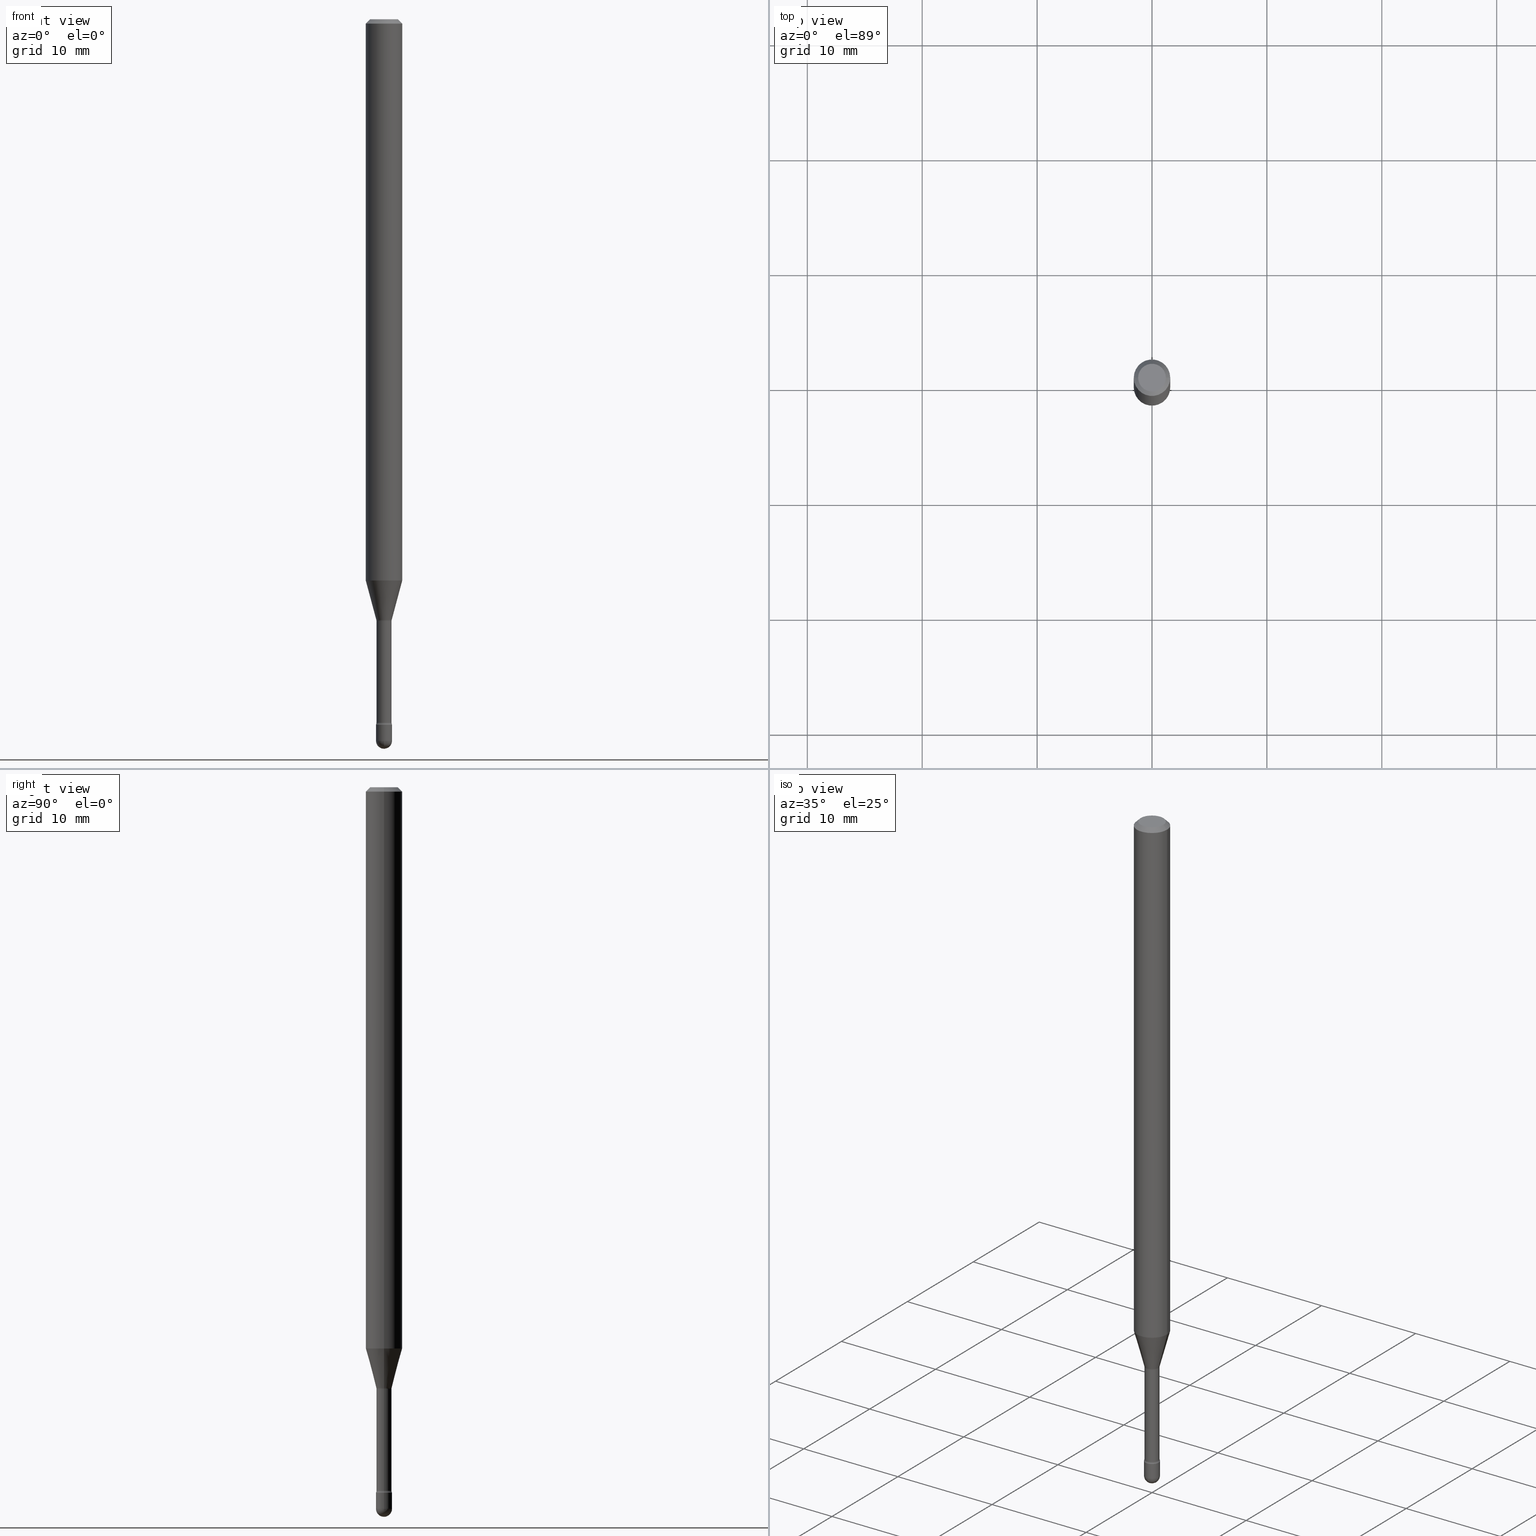
[diagram: canonical four-view strip — front | top / right | iso, engineering-drawing reading convention]
A machine part, canonical four-view strip (front | top / right | iso — engineering-drawing reading convention). The complete STEP part file that produces these views, byte-faithful:
ISO-10303-21;
HEADER;
FILE_DESCRIPTION (( 'STEP AP203' ),
    '1' );
FILE_NAME ('09489.STEP',
    '2024-04-09T23:47:00',
    ( '' ),
    ( '' ),
    'SwSTEP 2.0',
    'SolidWorks 2023',
    '' );
FILE_SCHEMA (( 'CONFIG_CONTROL_DESIGN' ));
ENDSEC;

DATA;
#1 = CALENDAR_DATE ( 2024, 9, 4 ) ;
#2 = DIRECTION ( 'NONE',  ( -2.445468806185136597E-29, 3.491481338843145583E-15, 1.000000000000000000 ) ) ;
#3 = CARTESIAN_POINT ( 'NONE',  ( 5.033001013364303975E-29, -7.185791563603268197E-15, -2.058092501787273321 ) ) ;
#4 = VERTEX_POINT ( 'NONE', #127 ) ;
#5 = ORIENTED_EDGE ( 'NONE', *, *, #21, .T. ) ;
#6 = PERSON_AND_ORGANIZATION ( #26, #140 ) ;
#7 = CARTESIAN_POINT ( 'NONE',  ( -1.169113584055446105E-44, 1.669184350826100908E-30, 4.780733988912460139E-16 ) ) ;
#8 = ORIENTED_EDGE ( 'NONE', *, *, #451, .F. ) ;
#9 = PERSON_AND_ORGANIZATION_ROLE ( 'design_supplier' ) ;
#10 = DIRECTION ( 'NONE',  ( 1.000000000000000000, -6.982962677686279332E-15, 0.000000000000000000 ) ) ;
#11 = EDGE_LOOP ( 'NONE', ( #555, #518, #396, #521, #220 ) ) ;
#12 = CIRCLE ( 'NONE', #111, 0.02585000000000006043 ) ;
#13 = APPROVAL_PERSON_ORGANIZATION ( #280, #286, #142 ) ;
#14 = EDGE_CURVE ( 'NONE', #376, #343, #514, .T. ) ;
#15 = DATE_TIME_ROLE ( 'creation_date' ) ;
#16 = APPLICATION_CONTEXT ( 'configuration controlled 3d designs of mechanical parts and assemblies' ) ;
#17 = APPROVAL ( #445, 'UNSPECIFIED' ) ;
#18 = DIRECTION ( 'NONE',  ( 1.000000000000000000, -6.982962677686265922E-15, 4.876176775795935793E-29 ) ) ;
#19 = EDGE_CURVE ( 'NONE', #271, #139, #437, .T. ) ;
#20 = LINE ( 'NONE', #265, #566 ) ;
#21 = EDGE_CURVE ( 'NONE', #59, #214, #209, .T. ) ;
#22 = CARTESIAN_POINT ( 'NONE',  ( -1.169113584055446105E-44, 1.669184350826100908E-30, 4.780733988912460139E-16 ) ) ;
#23 = CARTESIAN_POINT ( 'NONE',  ( 6.046421623292749742E-29, -8.632687610289676724E-15, -2.472500000000000142 ) ) ;
#24 = AXIS2_PLACEMENT_3D ( 'NONE', #458, #68, #64 ) ;
#25 = ORIENTED_EDGE ( 'NONE', *, *, #21, .F. ) ;
#26 = PERSON ( 'UNSPECIFIED', 'UNSPECIFIED', 'UNSPECIFIED', ('UNSPECIFIED'), ('UNSPECIFIED'), ('UNSPECIFIED') ) ;
#27 = CC_DESIGN_DATE_AND_TIME_ASSIGNMENT ( #186, #15, ( #108 ) ) ;
#28 = EDGE_LOOP ( 'NONE', ( #366, #130 ) ) ;
#29 = DIRECTION ( 'NONE',  ( -2.445468806185136597E-29, 3.491481338843145583E-15, 1.000000000000000000 ) ) ;
#30 = MANIFOLD_SOLID_BREP ( 'Body-Move/Copy2[1]', #471 ) ;
#31 = ORIENTED_EDGE ( 'NONE', *, *, #109, .T. ) ;
#32 = DIRECTION ( 'NONE',  ( 1.000000000000000000, -6.982962677686277755E-15, 0.000000000000000000 ) ) ;
#33 = CARTESIAN_POINT ( 'NONE',  ( -0.02749999999999997238, -8.243511143649856187E-15, -2.417000000000000259 ) ) ;
#34 = AXIS2_PLACEMENT_3D ( 'NONE', #229, #276, #442 ) ;
#35 = DIRECTION ( 'NONE',  ( 0.7071067811865475727, -7.319954787623256045E-15, -0.7071067811865474617 ) ) ;
#36 = CARTESIAN_POINT ( 'NONE',  ( -0.02585000000000006043, -8.237433288748017420E-15, -2.410160592130894397 ) ) ;
#37 = AXIS2_PLACEMENT_3D ( 'NONE', #481, #29, #477 ) ;
#38 = ADVANCED_FACE ( 'NONE', ( #341 ), #174, .T. ) ;
#39 = FACE_OUTER_BOUND ( 'NONE', #28, .T. ) ;
#40 = EDGE_CURVE ( 'NONE', #59, #139, #180, .T. ) ;
#41 = FACE_OUTER_BOUND ( 'NONE', #403, .T. ) ;
#42 = ORIENTED_EDGE ( 'NONE', *, *, #551, .F. ) ;
#43 = DIRECTION ( 'NONE',  ( -1.000000000000000000, 6.982962677686265922E-15, -4.883557194083112901E-29 ) ) ;
#44 = ORIENTED_EDGE ( 'NONE', *, *, #374, .T. ) ;
#45 = APPROVAL_ROLE ( '' ) ;
#46 = DIRECTION ( 'NONE',  ( 6.982962677686265922E-15, 1.000000000000000000, 0.000000000000000000 ) ) ;
#47 = APPLICATION_CONTEXT ( 'configuration controlled 3d designs of mechanical parts and assemblies' ) ;
#48 = AXIS2_PLACEMENT_3D ( 'NONE', #420, #122, #205 ) ;
#49 = VECTOR ( 'NONE', #392, 39.37007874015748143 ) ;
#50 = DIRECTION ( 'NONE',  ( 0.000000000000000000, 0.000000000000000000, 1.000000000000000000 ) ) ;
#51 = DIRECTION ( 'NONE',  ( 1.000000000000000000, -6.982962677686265922E-15, 4.883557194083112340E-29 ) ) ;
#52 = ORIENTED_EDGE ( 'NONE', *, *, #551, .T. ) ;
#53 = APPROVAL_ROLE ( '' ) ;
#54 = CARTESIAN_POINT ( 'NONE',  ( 0.02749999999999997238, -8.630941869620257587E-15, -2.417000000000000259 ) ) ;
#55 = EDGE_LOOP ( 'NONE', ( #242, #506, #358, #42 ) ) ;
#56 = VERTEX_POINT ( 'NONE', #434 ) ;
#57 = ORIENTED_EDGE ( 'NONE', *, *, #87, .T. ) ;
#58 = DATE_AND_TIME ( #453, #457 ) ;
#59 = VERTEX_POINT ( 'NONE', #36 ) ;
#60 = EDGE_CURVE ( 'NONE', #452, #4, #554, .T. ) ;
#61 = AXIS2_PLACEMENT_3D ( 'NONE', #315, #488, #100 ) ;
#62 = DATE_AND_TIME ( #398, #113 ) ;
#63 = CC_DESIGN_SECURITY_CLASSIFICATION ( #391, ( #557 ) ) ;
#64 = DIRECTION ( 'NONE',  ( -1.000000000000000000, 7.105427357600982137E-15, 0.000000000000000000 ) ) ;
#65 = EDGE_CURVE ( 'NONE', #313, #316, #69, .T. ) ;
#66 = EDGE_LOOP ( 'NONE', ( #243, #5, #527, #323 ) ) ;
#67 = DIRECTION ( 'NONE',  ( -2.445468806185136877E-29, 3.491481338843145188E-15, 1.000000000000000000 ) ) ;
#68 = DIRECTION ( 'NONE',  ( 7.105427357601001859E-15, 1.000000000000000000, -3.491481338843145583E-15 ) ) ;
#69 = CIRCLE ( 'NONE', #249, 0.02750000000000000014 ) ;
#70 = CIRCLE ( 'NONE', #390, 0.02750000000000000014 ) ;
#71 = LOCAL_TIME ( 19, 47, 0.000000000000000000, #314 ) ;
#72 = ADVANCED_FACE ( 'NONE', ( #504 ), #541, .T. ) ;
#73 = DIRECTION ( 'NONE',  ( 1.000000000000000000, -6.982962677686265922E-15, 4.876176775795935793E-29 ) ) ;
#74 = FACE_OUTER_BOUND ( 'NONE', #564, .T. ) ;
#75 = CARTESIAN_POINT ( 'NONE',  ( 5.042495021882977278E-29, -7.199346491594957995E-15, -2.061974787463811243 ) ) ;
#76 = FACE_OUTER_BOUND ( 'NONE', #441, .T. ) ;
#77 = CC_DESIGN_PERSON_AND_ORGANIZATION_ASSIGNMENT ( #233, #490, ( #378 ) ) ;
#78 =( LENGTH_UNIT ( ) NAMED_UNIT ( * ) SI_UNIT ( $, .METRE. ) );
#79 = VECTOR ( 'NONE', #470, 39.37007874015748143 ) ;
#80 = CARTESIAN_POINT ( 'NONE',  ( 0.06250000000000000000, -4.811533449433681963E-16, -0.01500000000000008271 ) ) ;
#81 = CARTESIAN_POINT ( 'NONE',  ( -0.04085000000000000436, -8.124774023482161163E-15, -2.410160592130893953 ) ) ;
#82 = CARTESIAN_POINT ( 'NONE',  ( 5.033001013364303975E-29, -7.185791563603268197E-15, -2.058092501787273321 ) ) ;
#83 = CARTESIAN_POINT ( 'NONE',  ( 5.910698104549476805E-29, -8.438910395983884306E-15, -2.417000000000000259 ) ) ;
#84 = LINE ( 'NONE', #258, #473 ) ;
#85 =( CONVERSION_BASED_UNIT ( 'INCH', #342 ) LENGTH_UNIT ( ) NAMED_UNIT ( #159 ) );
#86 = EDGE_CURVE ( 'NONE', #4, #452, #207, .T. ) ;
#87 = EDGE_CURVE ( 'NONE', #56, #450, #215, .T. ) ;
#88 = DIRECTION ( 'NONE',  ( -0.7071067811865475727, 2.468850131082257455E-15, -0.7071067811865474617 ) ) ;
#89 = CARTESIAN_POINT ( 'NONE',  ( -0.06250000000000000000, -2.939540860326531103E-15, -0.01500000000000008271 ) ) ;
#90 = DIRECTION ( 'NONE',  ( -2.445468806185136597E-29, 3.491481338843145583E-15, 1.000000000000000000 ) ) ;
#91 = AXIS2_PLACEMENT_3D ( 'NONE', #166, #149, #137 ) ;
#92 = CARTESIAN_POINT ( 'NONE',  ( -0.02585000000000002920, 1.836752971939877819E-16, 4.780733988912448306E-16 ) ) ;
#93 = CIRCLE ( 'NONE', #502, 0.06250000000000000000 ) ;
#94 = EDGE_CURVE ( 'NONE', #395, #343, #533, .T. ) ;
#95 = ORIENTED_EDGE ( 'NONE', *, *, #104, .F. ) ;
#96 = PERSON_AND_ORGANIZATION_ROLE ( 'classification_officer' ) ;
#97 = FACE_OUTER_BOUND ( 'NONE', #262, .T. ) ;
#98 = ORIENTED_EDGE ( 'NONE', *, *, #14, .F. ) ;
#99 = PERSON_AND_ORGANIZATION ( #26, #140 ) ;
#100 = DIRECTION ( 'NONE',  ( 1.000000000000000000, -6.982962677686254089E-15, 0.000000000000000000 ) ) ;
#101 = ORIENTED_EDGE ( 'NONE', *, *, #253, .T. ) ;
#102 = VERTEX_POINT ( 'NONE', #512 ) ;
#103 = CIRCLE ( 'NONE', #61, 0.02585000000000000492 ) ;
#104 = EDGE_CURVE ( 'NONE', #152, #267, #308, .T. ) ;
#105 = AXIS2_PLACEMENT_3D ( 'NONE', #83, #385, #257 ) ;
#106 = FACE_OUTER_BOUND ( 'NONE', #228, .T. ) ;
#107 = APPLICATION_PROTOCOL_DEFINITION ( 'international standard', 'config_control_design', 1994, #16 ) ;
#108 = PRODUCT_DEFINITION ( 'UNKNOWN', '', #557, #161 ) ;
#109 = EDGE_CURVE ( 'NONE', #313, #452, #126, .T. ) ;
#110 = CALENDAR_DATE ( 2024, 9, 4 ) ;
#111 = AXIS2_PLACEMENT_3D ( 'NONE', #562, #268, #32 ) ;
#112 = AXIS2_PLACEMENT_3D ( 'NONE', #266, #43, #222 ) ;
#113 = LOCAL_TIME ( 19, 47, 0.000000000000000000, #145 ) ;
#114 = DIRECTION ( 'NONE',  ( 2.438088387897960049E-29, -3.491481338843145188E-15, -1.000000000000000000 ) ) ;
#115 = DIRECTION ( 'NONE',  ( -2.445468806185136597E-29, 3.491481338843145583E-15, 1.000000000000000000 ) ) ;
#116 = CIRCLE ( 'NONE', #412, 0.02636111260566398329 ) ;
#117 = ADVANCED_FACE ( 'NONE', ( #294 ), #510, .F. ) ;
#118 = VERTEX_POINT ( 'NONE', #432 ) ;
#119 = DIRECTION ( 'NONE',  ( 0.2588190451025210170, 1.565188264969624531E-15, 0.9659258262890682012 ) ) ;
#120 = DIRECTION ( 'NONE',  ( 1.000000000000000000, -6.982962677686267499E-15, 4.884662768193073002E-29 ) ) ;
#121 = CARTESIAN_POINT ( 'NONE',  ( 6.046421623292749742E-29, -8.632687610289676724E-15, -2.472500000000000142 ) ) ;
#122 = DIRECTION ( 'NONE',  ( -2.445468806185136597E-29, 3.491481338843145583E-15, 1.000000000000000000 ) ) ;
#123 = CARTESIAN_POINT ( 'NONE',  ( 0.02585000000000002920, -1.805095852181885227E-16, 4.780733988912472958E-16 ) ) ;
#124 = CONICAL_SURFACE ( 'NONE', #238, 0.02636111260566398329, 0.2617993877991496854 ) ;
#125 = AXIS2_PLACEMENT_3D ( 'NONE', #7, #187, #361 ) ;
#126 = LINE ( 'NONE', #384, #501 ) ;
#127 = CARTESIAN_POINT ( 'NONE',  ( -0.02750000000000000014, -8.340399750802752396E-15, -2.417000000000000259 ) ) ;
#128 = FACE_OUTER_BOUND ( 'NONE', #333, .T. ) ;
#129 = ADVANCED_FACE ( 'NONE', ( #297 ), #290, .T. ) ;
#130 = ORIENTED_EDGE ( 'NONE', *, *, #86, .T. ) ;
#131 = LINE ( 'NONE', #293, #79 ) ;
#132 = ADVANCED_FACE ( 'NONE', ( #106 ), #124, .T. ) ;
#133 = CARTESIAN_POINT ( 'NONE',  ( 6.114847869110463221E-29, -8.727019457759036735E-15, -2.500000000000000000 ) ) ;
#134 = FACE_OUTER_BOUND ( 'NONE', #66, .T. ) ;
#135 = DIRECTION ( 'NONE',  ( 1.000000000000000000, -6.982962677686260400E-15, 4.883557194083110659E-29 ) ) ;
#136 = CARTESIAN_POINT ( 'NONE',  ( 5.910698104549476805E-29, -8.438910395983884306E-15, -2.417000000000000259 ) ) ;
#137 = DIRECTION ( 'NONE',  ( 1.000000000000000000, -6.982962677686266711E-15, 4.876176775795935793E-29 ) ) ;
#138 = CONICAL_SURFACE ( 'NONE', #524, 0.06250000000000000000, 0.7853981633974483900 ) ;
#139 = VERTEX_POINT ( 'NONE', #33 ) ;
#140 = ORGANIZATION ( 'UNSPECIFIED', 'UNSPECIFIED', '' ) ;
#141 = CARTESIAN_POINT ( 'NONE',  ( 1.920314736364331113E-16, 0.02749999999999141673, -2.472500000000000142 ) ) ;
#142 = APPROVAL_ROLE ( '' ) ;
#143 = ORIENTED_EDGE ( 'NONE', *, *, #264, .F. ) ;
#144 = EDGE_CURVE ( 'NONE', #192, #454, #411, .T. ) ;
#145 = COORDINATED_UNIVERSAL_TIME_OFFSET ( 5, 0, .BEHIND. ) ;
#146 = ORIENTED_EDGE ( 'NONE', *, *, #491, .T. ) ;
#147 = ORIENTED_EDGE ( 'NONE', *, *, #65, .F. ) ;
#148 = CYLINDRICAL_SURFACE ( 'NONE', #125, 0.02585000000000002920 ) ;
#149 = DIRECTION ( 'NONE',  ( -2.445468806185136597E-29, 3.491481338843145583E-15, 1.000000000000000000 ) ) ;
#150 = ORIENTED_EDGE ( 'NONE', *, *, #236, .T. ) ;
#151 = CIRCLE ( 'NONE', #464, 0.02750000000000009034 ) ;
#152 = VERTEX_POINT ( 'NONE', #89 ) ;
#153 = CARTESIAN_POINT ( 'NONE',  ( 5.910698104549476805E-29, -8.438910395983884306E-15, -2.417000000000000259 ) ) ;
#154 = DIRECTION ( 'NONE',  ( 2.445468806185136597E-29, -3.491481338843145583E-15, -1.000000000000000000 ) ) ;
#155 = ADVANCED_FACE ( 'NONE', ( #206 ), #138, .T. ) ;
#156 = ORIENTED_EDGE ( 'NONE', *, *, #272, .F. ) ;
#157 = CARTESIAN_POINT ( 'NONE',  ( 3.316907271900976096E-16, 0.04749999999999999362, 3.181781981480094004E-17 ) ) ;
#158 = ADVANCED_FACE ( 'NONE', ( #339 ), #379, .F. ) ;
#159 = DIMENSIONAL_EXPONENTS ( 1.000000000000000000, 0.000000000000000000, 0.000000000000000000, 0.000000000000000000, 0.000000000000000000, 0.000000000000000000, 0.000000000000000000 ) ;
#160 = CYLINDRICAL_SURFACE ( 'NONE', #542, 0.06250000000000000000 ) ;
#161 = DESIGN_CONTEXT ( 'detailed design', #47, 'design' ) ;
#162 = AXIS2_PLACEMENT_3D ( 'NONE', #370, #115, #135 ) ;
#163 = EDGE_CURVE ( 'NONE', #139, #271, #489, .T. ) ;
#164 = APPROVAL_PERSON_ORGANIZATION ( #360, #17, #53 ) ;
#165 = CARTESIAN_POINT ( 'NONE',  ( 0.04749999999999999362, -4.035134999187581581E-16, -8.274703207154280181E-17 ) ) ;
#166 = CARTESIAN_POINT ( 'NONE',  ( 0.000000000000000000, 0.000000000000000000, 0.000000000000000000 ) ) ;
#167 = CARTESIAN_POINT ( 'NONE',  ( -0.02636111260566398329, -6.998484592918182700E-15, -2.058092501787273321 ) ) ;
#168 = DIRECTION ( 'NONE',  ( -2.445468806185136877E-29, 3.491481338843145188E-15, 1.000000000000000000 ) ) ;
#169 = CARTESIAN_POINT ( 'NONE',  ( 4.703175343761648131E-29, -6.714887920270539965E-15, -1.923220337902600940 ) ) ;
#170 = CARTESIAN_POINT ( 'NONE',  ( 3.668203209277725232E-31, -5.237222008264747365E-17, -0.01500000000000008271 ) ) ;
#171 = CC_DESIGN_PERSON_AND_ORGANIZATION_ASSIGNMENT ( #6, #448, ( #108 ) ) ;
#172 = AXIS2_PLACEMENT_3D ( 'NONE', #503, #289, #244 ) ;
#173 = CARTESIAN_POINT ( 'NONE',  ( 5.893972545952799230E-29, -8.415030731040162465E-15, -2.410160592130893953 ) ) ;
#174 = CYLINDRICAL_SURFACE ( 'NONE', #419, 0.02750000000000000014 ) ;
#175 = DIRECTION ( 'NONE',  ( -2.445468806185136877E-29, 3.491481338843145188E-15, 1.000000000000000000 ) ) ;
#176 = CARTESIAN_POINT ( 'NONE',  ( 5.910698104549476805E-29, -8.438910395983884306E-15, -2.417000000000000259 ) ) ;
#177 = ORIENTED_EDGE ( 'NONE', *, *, #245, .T. ) ;
#178 = CARTESIAN_POINT ( 'NONE',  ( 5.893972545952800351E-29, -8.415030731040162465E-15, -2.410160592130894397 ) ) ;
#179 = CC_DESIGN_PERSON_AND_ORGANIZATION_ASSIGNMENT ( #526, #536, ( #557 ) ) ;
#180 = CIRCLE ( 'NONE', #388, 0.01499999999999994220 ) ;
#181 = AXIS2_PLACEMENT_3D ( 'NONE', #430, #213, #302 ) ;
#182 = ORIENTED_EDGE ( 'NONE', *, *, #422, .F. ) ;
#183 = DATE_TIME_ROLE ( 'classification_date' ) ;
#184 = ORIENTED_EDGE ( 'NONE', *, *, #423, .F. ) ;
#185 = ORIENTED_EDGE ( 'NONE', *, *, #104, .T. ) ;
#186 = DATE_AND_TIME ( #110, #71 ) ;
#187 = DIRECTION ( 'NONE',  ( -2.445468806185136597E-29, 3.491481338843145583E-15, 1.000000000000000000 ) ) ;
#188 = ORIENTED_EDGE ( 'NONE', *, *, #520, .F. ) ;
#189 = ORIENTED_EDGE ( 'NONE', *, *, #163, .F. ) ;
#190 = DATE_AND_TIME ( #1, #346 ) ;
#191 = CARTESIAN_POINT ( 'NONE',  ( 6.046421623292749742E-29, -8.632687610289676724E-15, -2.472500000000000142 ) ) ;
#192 = VERTEX_POINT ( 'NONE', #234 ) ;
#193 = PLANE ( 'NONE',  #525 ) ;
#194 = CIRCLE ( 'NONE', #181, 0.01499999999999994220 ) ;
#195 =( GEOMETRIC_REPRESENTATION_CONTEXT ( 3 ) GLOBAL_UNCERTAINTY_ASSIGNED_CONTEXT ( ( #317 ) ) GLOBAL_UNIT_ASSIGNED_CONTEXT ( ( #85, #296, #256 ) ) REPRESENTATION_CONTEXT ( 'NONE', 'WORKASPACE' ) );
#196 = DIRECTION ( 'NONE',  ( 1.000000000000000000, -6.982962677686254089E-15, 0.000000000000000000 ) ) ;
#197 = APPROVAL_STATUS ( 'not_yet_approved' ) ;
#198 = ORIENTED_EDGE ( 'NONE', *, *, #386, .T. ) ;
#199 = CYLINDRICAL_SURFACE ( 'NONE', #172, 0.02585000000000002920 ) ;
#200 = ADVANCED_FACE ( 'NONE', ( #97 ), #353, .T. ) ;
#201 = CARTESIAN_POINT ( 'NONE',  ( 5.910698104549476805E-29, -8.438910395983884306E-15, -2.417000000000000259 ) ) ;
#202 = AXIS2_PLACEMENT_3D ( 'NONE', #201, #499, #375 ) ;
#203 = DIRECTION ( 'NONE',  ( -2.438088387897960049E-29, 3.491481338843145188E-15, 1.000000000000000000 ) ) ;
#204 = DIRECTION ( 'NONE',  ( -1.000000000000000000, 6.982962677686265922E-15, -4.876176775795935793E-29 ) ) ;
#205 = DIRECTION ( 'NONE',  ( 1.000000000000000000, -6.982962677686279332E-15, 0.000000000000000000 ) ) ;
#206 = FACE_OUTER_BOUND ( 'NONE', #279, .T. ) ;
#207 = CIRCLE ( 'NONE', #202, 0.02750000000000000014 ) ;
#208 = DIRECTION ( 'NONE',  ( 1.000000000000000000, -6.982962677686256455E-15, 0.000000000000000000 ) ) ;
#209 = LINE ( 'NONE', #92, #226 ) ;
#210 = DIRECTION ( 'NONE',  ( 1.000000000000000000, -6.982962677686259611E-15, 0.000000000000000000 ) ) ;
#211 = DIRECTION ( 'NONE',  ( -2.445468806185136597E-29, 3.491481338843145583E-15, 1.000000000000000000 ) ) ;
#212 = ORIENTED_EDGE ( 'NONE', *, *, #86, .F. ) ;
#213 = DIRECTION ( 'NONE',  ( -6.982962677686266711E-15, -1.000000000000000000, 3.491481338843145583E-15 ) ) ;
#214 = VERTEX_POINT ( 'NONE', #309 ) ;
#215 = CIRCLE ( 'NONE', #565, 0.04749999999999999362 ) ;
#216 = AXIS2_PLACEMENT_3D ( 'NONE', #563, #270, #46 ) ;
#217 = CC_DESIGN_APPROVAL ( #286, ( #391 ) ) ;
#218 = LINE ( 'NONE', #167, #49 ) ;
#219 = ADVANCED_FACE ( 'NONE', ( #41 ), #225, .T. ) ;
#220 = ORIENTED_EDGE ( 'NONE', *, *, #65, .T. ) ;
#221 = EDGE_LOOP ( 'NONE', ( #235, #443, #150, #31, #212 ) ) ;
#222 = DIRECTION ( 'NONE',  ( 6.982962677686265922E-15, 1.000000000000000000, 0.000000000000000000 ) ) ;
#223 = ORIENTED_EDGE ( 'NONE', *, *, #14, .T. ) ;
#224 = COORDINATED_UNIVERSAL_TIME_OFFSET ( 5, 0, .BEHIND. ) ;
#225 = SPHERICAL_SURFACE ( 'NONE', #112, 0.02750000000000009034 ) ;
#226 = VECTOR ( 'NONE', #168, 39.37007874015748143 ) ;
#227 = CIRCLE ( 'NONE', #484, 0.02636111260566398329 ) ;
#228 = EDGE_LOOP ( 'NONE', ( #188, #406, #336, #440 ) ) ;
#229 = CARTESIAN_POINT ( 'NONE',  ( 3.668203209277725232E-31, -5.237222008264747365E-17, -0.01500000000000008271 ) ) ;
#230 = MANIFOLD_SOLID_BREP ( 'Body-Move/Copy2[2]', #364 ) ;
#231 = APPLICATION_PROTOCOL_DEFINITION ( 'international standard', 'config_control_design', 1994, #47 ) ;
#232 = DIRECTION ( 'NONE',  ( 6.982962677686265922E-15, 1.000000000000000000, 0.000000000000000000 ) ) ;
#233 = PERSON_AND_ORGANIZATION ( #26, #140 ) ;
#234 = CARTESIAN_POINT ( 'NONE',  ( 0.06250000000000000000, -7.151323087625930845E-15, -1.923220337902600940 ) ) ;
#235 = ORIENTED_EDGE ( 'NONE', *, *, #435, .F. ) ;
#236 = EDGE_CURVE ( 'NONE', #343, #313, #70, .T. ) ;
#237 = APPROVAL_DATE_TIME ( #58, #286 ) ;
#238 = AXIS2_PLACEMENT_3D ( 'NONE', #3, #462, #208 ) ;
#239 = VECTOR ( 'NONE', #35, 39.37007874015748143 ) ;
#240 = APPROVAL_DATE_TIME ( #405, #17 ) ;
#241 = CARTESIAN_POINT ( 'NONE',  ( 5.042495021882977278E-29, -7.199346491594957995E-15, -2.061974787463811243 ) ) ;
#242 = ORIENTED_EDGE ( 'NONE', *, *, #144, .T. ) ;
#243 = ORIENTED_EDGE ( 'NONE', *, *, #334, .T. ) ;
#244 = DIRECTION ( 'NONE',  ( 1.000000000000000000, -6.982962677686266711E-15, 4.927827573631265842E-29 ) ) ;
#245 = EDGE_CURVE ( 'NONE', #214, #362, #103, .T. ) ;
#246 = AXIS2_PLACEMENT_3D ( 'NONE', #136, #401, #10 ) ;
#247 = ORIENTED_EDGE ( 'NONE', *, *, #451, .T. ) ;
#248 = DIRECTION ( 'NONE',  ( 1.000000000000000000, -6.982962677686266711E-15, 4.852736867747366207E-29 ) ) ;
#249 = AXIS2_PLACEMENT_3D ( 'NONE', #23, #534, #331 ) ;
#250 = AXIS2_PLACEMENT_3D ( 'NONE', #241, #459, #196 ) ;
#251 = CARTESIAN_POINT ( 'NONE',  ( 4.703175343761648131E-29, -6.714887920270539965E-15, -1.923220337902600940 ) ) ;
#252 = ORIENTED_EDGE ( 'NONE', *, *, #253, .F. ) ;
#253 = EDGE_CURVE ( 'NONE', #376, #316, #151, .T. ) ;
#254 = CYLINDRICAL_SURFACE ( 'NONE', #37, 0.06250000000000000000 ) ;
#255 = ADVANCED_FACE ( 'NONE', ( #134 ), #148, .T. ) ;
#256 =( NAMED_UNIT ( * ) SI_UNIT ( $, .STERADIAN. ) SOLID_ANGLE_UNIT ( ) );
#257 = DIRECTION ( 'NONE',  ( 1.000000000000000000, -6.982962677686279332E-15, 0.000000000000000000 ) ) ;
#258 = CARTESIAN_POINT ( 'NONE',  ( -0.06250000000000000000, 3.840629472727441958E-16, -0.01500000000000008271 ) ) ;
#259 = DIRECTION ( 'NONE',  ( 1.000000000000000000, -6.982962677686256455E-15, 0.000000000000000000 ) ) ;
#260 = DIRECTION ( 'NONE',  ( 1.000000000000000000, -6.982962677686279332E-15, 0.000000000000000000 ) ) ;
#261 = AXIS2_PLACEMENT_3D ( 'NONE', #304, #90, #260 ) ;
#262 = EDGE_LOOP ( 'NONE', ( #252, #223, #431, #156 ) ) ;
#263 = ORIENTED_EDGE ( 'NONE', *, *, #40, .T. ) ;
#264 = EDGE_CURVE ( 'NONE', #454, #152, #319, .T. ) ;
#265 = CARTESIAN_POINT ( 'NONE',  ( 0.02636111260566398329, -7.369870229070904024E-15, -2.058092501787273321 ) ) ;
#266 = CARTESIAN_POINT ( 'NONE',  ( 6.046421623292749742E-29, -8.632687610289676724E-15, -2.472500000000000142 ) ) ;
#267 = VERTEX_POINT ( 'NONE', #449 ) ;
#268 = DIRECTION ( 'NONE',  ( -2.445468806185136597E-29, 3.491481338843145583E-15, 1.000000000000000000 ) ) ;
#269 = SECURITY_CLASSIFICATION_LEVEL ( 'unclassified' ) ;
#270 = DIRECTION ( 'NONE',  ( -1.000000000000000000, 6.982962677686265922E-15, -4.883557194083112901E-29 ) ) ;
#271 = VERTEX_POINT ( 'NONE', #54 ) ;
#272 = EDGE_CURVE ( 'NONE', #316, #395, #380, .T. ) ;
#273 = CARTESIAN_POINT ( 'NONE',  ( 6.046421623292749742E-29, -8.632687610289676724E-15, -2.472500000000000142 ) ) ;
#274 = ORIENTED_EDGE ( 'NONE', *, *, #245, .F. ) ;
#275 = CIRCLE ( 'NONE', #397, 0.01500000000000001853 ) ;
#276 = DIRECTION ( 'NONE',  ( -2.445468806185136597E-29, 3.491481338843145583E-15, 1.000000000000000000 ) ) ;
#277 = APPROVAL_STATUS ( 'not_yet_approved' ) ;
#278 = EDGE_LOOP ( 'NONE', ( #57, #332 ) ) ;
#279 = EDGE_LOOP ( 'NONE', ( #407, #455, #493, #185 ) ) ;
#280 = PERSON_AND_ORGANIZATION ( #26, #140 ) ;
#281 = ORIENTED_EDGE ( 'NONE', *, *, #494, .F. ) ;
#282 = COORDINATED_UNIVERSAL_TIME_OFFSET ( 5, 0, .BEHIND. ) ;
#283 = AXIS2_PLACEMENT_3D ( 'NONE', #472, #211, #382 ) ;
#284 = CC_DESIGN_APPROVAL ( #417, ( #108 ) ) ;
#285 = CARTESIAN_POINT ( 'NONE',  ( 5.893972545952799230E-29, -8.415030731040162465E-15, -2.410160592130893953 ) ) ;
#286 = APPROVAL ( #197, 'UNSPECIFIED' ) ;
#287 = PRODUCT_DEFINITION_SHAPE ( 'NONE', 'NONE',  #108 ) ;
#288 = VECTOR ( 'NONE', #175, 39.37007874015748143 ) ;
#289 = DIRECTION ( 'NONE',  ( -2.445468806185136597E-29, 3.491481338843145583E-15, 1.000000000000000000 ) ) ;
#290 = CYLINDRICAL_SURFACE ( 'NONE', #91, 0.02750000000000000014 ) ;
#291 = ORIENTED_EDGE ( 'NONE', *, *, #509, .T. ) ;
#292 = DIRECTION ( 'NONE',  ( -2.438088387897960049E-29, 3.491481338843145188E-15, 1.000000000000000000 ) ) ;
#293 = CARTESIAN_POINT ( 'NONE',  ( 0.06250000000000000000, -4.364351673553899931E-16, 4.780733988912490708E-16 ) ) ;
#294 = FACE_OUTER_BOUND ( 'NONE', #352, .T. ) ;
#295 = FACE_OUTER_BOUND ( 'NONE', #400, .T. ) ;
#296 =( NAMED_UNIT ( * ) PLANE_ANGLE_UNIT ( ) SI_UNIT ( $, .RADIAN. ) );
#297 = FACE_OUTER_BOUND ( 'NONE', #11, .T. ) ;
#298 = DIRECTION ( 'NONE',  ( -1.000000000000000000, 7.105427357601001070E-15, -4.926315508542082329E-29 ) ) ;
#299 = CARTESIAN_POINT ( 'NONE',  ( 0.04084999999999999742, -7.484600516978441933E-15, -2.061974787463811243 ) ) ;
#300 = ADVANCED_FACE ( 'NONE', ( #439 ), #538, .F. ) ;
#301 = DIRECTION ( 'NONE',  ( 7.105427357601001859E-15, 1.000000000000000000, -3.491481338843145583E-15 ) ) ;
#302 = DIRECTION ( 'NONE',  ( 1.000000000000000000, -6.982962677686295110E-15, 0.000000000000000000 ) ) ;
#303 = DIRECTION ( 'NONE',  ( -2.445468806185136597E-29, 3.491481338843145583E-15, 1.000000000000000000 ) ) ;
#304 = CARTESIAN_POINT ( 'NONE',  ( 6.046421623292749742E-29, -8.632687610289676724E-15, -2.472500000000000142 ) ) ;
#305 = DIRECTION ( 'NONE',  ( -2.445468806185136597E-29, 3.491481338843145583E-15, 1.000000000000000000 ) ) ;
#306 = ADVANCED_FACE ( 'NONE', ( #76 ), #427, .F. ) ;
#307 = CARTESIAN_POINT ( 'NONE',  ( -1.953992523339673522E-16, -0.02750000000000868070, -2.472500000000000142 ) ) ;
#308 = CIRCLE ( 'NONE', #34, 0.06250000000000000000 ) ;
#309 = CARTESIAN_POINT ( 'NONE',  ( -0.02585000000000000492, -7.623513314123573261E-15, -2.061974787463811243 ) ) ;
#310 = CIRCLE ( 'NONE', #456, 0.04749999999999999362 ) ;
#311 = ORIENTED_EDGE ( 'NONE', *, *, #539, .T. ) ;
#312 = CALENDAR_DATE ( 2024, 9, 4 ) ;
#313 = VERTEX_POINT ( 'NONE', #410 ) ;
#314 = COORDINATED_UNIVERSAL_TIME_OFFSET ( 5, 0, .BEHIND. ) ;
#315 = CARTESIAN_POINT ( 'NONE',  ( 5.042495021882977278E-29, -7.199346491594957995E-15, -2.061974787463811243 ) ) ;
#316 = VERTEX_POINT ( 'NONE', #141 ) ;
#317 = UNCERTAINTY_MEASURE_WITH_UNIT (LENGTH_MEASURE( 1.000000000000000082E-05 ), #85, 'distance_accuracy_value', 'NONE');
#318 = PRODUCT_RELATED_PRODUCT_CATEGORY ( 'detail', '', ( #378 ) ) ;
#319 = LINE ( 'NONE', #531, #345 ) ;
#320 = AXIS2_PLACEMENT_3D ( 'NONE', #176, #305, #483 ) ;
#321 = AXIS2_PLACEMENT_3D ( 'NONE', #75, #487, #446 ) ;
#322 = ORIENTED_EDGE ( 'NONE', *, *, #546, .F. ) ;
#323 = ORIENTED_EDGE ( 'NONE', *, *, #386, .F. ) ;
#324 = ORIENTED_EDGE ( 'NONE', *, *, #19, .T. ) ;
#325 = ORIENTED_EDGE ( 'NONE', *, *, #522, .F. ) ;
#326 = CARTESIAN_POINT ( 'NONE',  ( 3.668203209277725232E-31, -5.237222008264747365E-17, -0.01500000000000008271 ) ) ;
#327 = CC_DESIGN_PERSON_AND_ORGANIZATION_ASSIGNMENT ( #99, #9, ( #557 ) ) ;
#328 = AXIS2_PLACEMENT_3D ( 'NONE', #285, #371, #329 ) ;
#329 = DIRECTION ( 'NONE',  ( 1.000000000000000000, -6.982962677686269077E-15, 4.883557194083113462E-29 ) ) ;
#330 = AXIS2_PLACEMENT_3D ( 'NONE', #363, #50, #500 ) ;
#331 = DIRECTION ( 'NONE',  ( 1.000000000000000000, -6.982962677686279332E-15, 0.000000000000000000 ) ) ;
#332 = ORIENTED_EDGE ( 'NONE', *, *, #522, .T. ) ;
#333 = EDGE_LOOP ( 'NONE', ( #143, #44, #52, #95 ) ) ;
#334 = EDGE_CURVE ( 'NONE', #118, #59, #12, .T. ) ;
#335 = DIRECTION ( 'NONE',  ( -2.445468806185136597E-29, 3.491481338843145583E-15, 1.000000000000000000 ) ) ;
#336 = ORIENTED_EDGE ( 'NONE', *, *, #546, .T. ) ;
#337 = AXIS2_PLACEMENT_3D ( 'NONE', #173, #348, #479 ) ;
#338 = VECTOR ( 'NONE', #67, 39.37007874015748143 ) ;
#339 = FACE_OUTER_BOUND ( 'NONE', #515, .T. ) ;
#340 = CARTESIAN_POINT ( 'NONE',  ( 2.023552857353652888E-45, -2.889097183224559242E-31, -8.274703207154537794E-17 ) ) ;
#341 = FACE_OUTER_BOUND ( 'NONE', #221, .T. ) ;
#342 = LENGTH_MEASURE_WITH_UNIT ( LENGTH_MEASURE( 0.02539999999999999897 ), #78 );
#343 = VERTEX_POINT ( 'NONE', #307 ) ;
#344 = DIRECTION ( 'NONE',  ( -2.445468806185136597E-29, 3.491481338843145583E-15, 1.000000000000000000 ) ) ;
#345 = VECTOR ( 'NONE', #492, 39.37007874015748143 ) ;
#346 = LOCAL_TIME ( 19, 47, 0.000000000000000000, #414 ) ;
#347 = AXIS2_PLACEMENT_3D ( 'NONE', #121, #298, #476 ) ;
#348 = DIRECTION ( 'NONE',  ( -2.445468806185136597E-29, 3.491481338843145583E-15, 1.000000000000000000 ) ) ;
#349 = ORIENTED_EDGE ( 'NONE', *, *, #389, .F. ) ;
#350 = CC_DESIGN_PERSON_AND_ORGANIZATION_ASSIGNMENT ( #368, #96, ( #391 ) ) ;
#351 = DIRECTION ( 'NONE',  ( 1.000000000000000000, -6.982962677686266711E-15, 4.876176775795935793E-29 ) ) ;
#352 = EDGE_LOOP ( 'NONE', ( #532, #498, #394, #324 ) ) ;
#353 = SPHERICAL_SURFACE ( 'NONE', #216, 0.02750000000000009034 ) ;
#354 = CIRCLE ( 'NONE', #250, 0.02585000000000000492 ) ;
#355 = VERTEX_POINT ( 'NONE', #474 ) ;
#356 = ORIENTED_EDGE ( 'NONE', *, *, #494, .T. ) ;
#357 = DIRECTION ( 'NONE',  ( 1.000000000000000000, -6.982962677686279332E-15, 0.000000000000000000 ) ) ;
#358 = ORIENTED_EDGE ( 'NONE', *, *, #491, .F. ) ;
#359 = EDGE_CURVE ( 'NONE', #59, #118, #365, .T. ) ;
#360 = PERSON_AND_ORGANIZATION ( #26, #140 ) ;
#361 = DIRECTION ( 'NONE',  ( 1.000000000000000000, -6.982962677686266711E-15, 4.927827573631265842E-29 ) ) ;
#362 = VERTEX_POINT ( 'NONE', #552 ) ;
#363 = CARTESIAN_POINT ( 'NONE',  ( 0.000000000000000000, 0.000000000000000000, 0.000000000000000000 ) ) ;
#364 = CLOSED_SHELL ( 'NONE', ( #306, #255, #461, #72, #469, #529, #132, #408, #155, #475, #300, #117, #467, #158 ) ) ;
#365 = CIRCLE ( 'NONE', #511, 0.02585000000000006043 ) ;
#366 = ORIENTED_EDGE ( 'NONE', *, *, #60, .T. ) ;
#367 = ORIENTED_EDGE ( 'NONE', *, *, #359, .F. ) ;
#368 = PERSON_AND_ORGANIZATION ( #26, #140 ) ;
#369 = CC_DESIGN_DATE_AND_TIME_ASSIGNMENT ( #190, #183, ( #391 ) ) ;
#370 = CARTESIAN_POINT ( 'NONE',  ( 5.042495021882977278E-29, -7.199346491594957995E-15, -2.061974787463811243 ) ) ;
#371 = DIRECTION ( 'NONE',  ( -2.445468806185136597E-29, 3.491481338843145583E-15, 1.000000000000000000 ) ) ;
#372 = ORIENTED_EDGE ( 'NONE', *, *, #163, .T. ) ;
#373 = CONICAL_SURFACE ( 'NONE', #283, 0.02636111260566398329, 0.2617993877991496854 ) ;
#374 = EDGE_CURVE ( 'NONE', #454, #192, #426, .T. ) ;
#375 = DIRECTION ( 'NONE',  ( 1.000000000000000000, -6.982962677686279332E-15, 0.000000000000000000 ) ) ;
#376 = VERTEX_POINT ( 'NONE', #133 ) ;
#377 = CARTESIAN_POINT ( 'NONE',  ( 3.668203209277725232E-31, -5.237222008264747365E-17, -0.01500000000000008271 ) ) ;
#378 = PRODUCT ( '09489', '09489', '', ( #530 ) ) ;
#379 = TOROIDAL_SURFACE ( 'NONE', #321, 0.04084999999999999742, 0.01500000000000001853 ) ;
#380 = CIRCLE ( 'NONE', #261, 0.02750000000000000014 ) ;
#381 = LINE ( 'NONE', #123, #288 ) ;
#382 = DIRECTION ( 'NONE',  ( 1.000000000000000000, -6.982962677686256455E-15, 0.000000000000000000 ) ) ;
#383 = DIRECTION ( 'NONE',  ( 2.445468806185136597E-29, -3.491481338843145583E-15, -1.000000000000000000 ) ) ;
#384 = CARTESIAN_POINT ( 'NONE',  ( 0.02750000000000000014, -1.920314736363723444E-16, 1.340948613343882413E-30 ) ) ;
#385 = DIRECTION ( 'NONE',  ( -2.445468806185136597E-29, 3.491481338843145583E-15, 1.000000000000000000 ) ) ;
#386 = EDGE_CURVE ( 'NONE', #118, #362, #381, .T. ) ;
#387 = DIRECTION ( 'NONE',  ( 1.000000000000000000, -6.982962677686277755E-15, 0.000000000000000000 ) ) ;
#388 = AXIS2_PLACEMENT_3D ( 'NONE', #81, #301, #480 ) ;
#389 = EDGE_CURVE ( 'NONE', #102, #355, #116, .T. ) ;
#390 = AXIS2_PLACEMENT_3D ( 'NONE', #191, #2, #357 ) ;
#391 = SECURITY_CLASSIFICATION ( '', '', #269 ) ;
#392 = DIRECTION ( 'NONE',  ( -0.2588190451025210170, 5.211531920934547886E-15, 0.9659258262890682012 ) ) ;
#393 = DIRECTION ( 'NONE',  ( -2.445468806185136597E-29, 3.491481338843145583E-15, 1.000000000000000000 ) ) ;
#394 = ORIENTED_EDGE ( 'NONE', *, *, #422, .T. ) ;
#395 = VERTEX_POINT ( 'NONE', #558 ) ;
#396 = ORIENTED_EDGE ( 'NONE', *, *, #60, .F. ) ;
#397 = AXIS2_PLACEMENT_3D ( 'NONE', #299, #478, #210 ) ;
#398 = CALENDAR_DATE ( 2024, 9, 4 ) ;
#399 = ORIENTED_EDGE ( 'NONE', *, *, #359, .T. ) ;
#400 = EDGE_LOOP ( 'NONE', ( #356, #495, #528, #322 ) ) ;
#401 = DIRECTION ( 'NONE',  ( -2.445468806185136597E-29, 3.491481338843145583E-15, 1.000000000000000000 ) ) ;
#402 = ORIENTED_EDGE ( 'NONE', *, *, #19, .F. ) ;
#403 = EDGE_LOOP ( 'NONE', ( #98, #101, #147, #537 ) ) ;
#404 = ADVANCED_BREP_SHAPE_REPRESENTATION ( '09489', ( #30, #230, #330 ), #195 ) ;
#405 = DATE_AND_TIME ( #312, #466 ) ;
#406 = ORIENTED_EDGE ( 'NONE', *, *, #389, .T. ) ;
#407 = ORIENTED_EDGE ( 'NONE', *, *, #509, .F. ) ;
#408 = ADVANCED_FACE ( 'NONE', ( #128 ), #254, .T. ) ;
#409 = SHAPE_DEFINITION_REPRESENTATION ( #287, #404 ) ;
#410 = CARTESIAN_POINT ( 'NONE',  ( 0.02750000000000000014, -8.727830476773153796E-15, -2.472500000000000142 ) ) ;
#411 = CIRCLE ( 'NONE', #549, 0.06250000000000000000 ) ;
#412 = AXIS2_PLACEMENT_3D ( 'NONE', #82, #436, #259 ) ;
#413 = APPROVAL_PERSON_ORGANIZATION ( #486, #417, #45 ) ;
#414 = COORDINATED_UNIVERSAL_TIME_OFFSET ( 5, 0, .BEHIND. ) ;
#415 = PLANE ( 'NONE',  #517 ) ;
#416 = DIRECTION ( 'NONE',  ( -1.000000000000000000, 6.982962677686266711E-15, 0.000000000000000000 ) ) ;
#417 = APPROVAL ( #277, 'UNSPECIFIED' ) ;
#418 = CIRCLE ( 'NONE', #24, 0.01500000000000001853 ) ;
#419 = AXIS2_PLACEMENT_3D ( 'NONE', #519, #393, #351 ) ;
#420 = CARTESIAN_POINT ( 'NONE',  ( 6.046421623292749742E-29, -8.632687610289676724E-15, -2.472500000000000142 ) ) ;
#421 = CARTESIAN_POINT ( 'NONE',  ( 5.033001013364303975E-29, -7.185791563603268197E-15, -2.058092501787273321 ) ) ;
#422 = EDGE_CURVE ( 'NONE', #118, #271, #194, .T. ) ;
#423 = EDGE_CURVE ( 'NONE', #56, #152, #84, .T. ) ;
#424 = ADVANCED_FACE ( 'NONE', ( #39 ), #193, .T. ) ;
#425 = DIRECTION ( 'NONE',  ( -2.445468806185136597E-29, 3.491481338843145583E-15, 1.000000000000000000 ) ) ;
#426 = CIRCLE ( 'NONE', #438, 0.06250000000000000000 ) ;
#427 = TOROIDAL_SURFACE ( 'NONE', #162, 0.04084999999999999742, 0.01500000000000001853 ) ;
#428 = CC_DESIGN_APPROVAL ( #17, ( #557 ) ) ;
#429 = LINE ( 'NONE', #80, #239 ) ;
#430 = CARTESIAN_POINT ( 'NONE',  ( 0.04085000000000000436, -8.700284756423646403E-15, -2.410160592130893953 ) ) ;
#431 = ORIENTED_EDGE ( 'NONE', *, *, #94, .F. ) ;
#432 = CARTESIAN_POINT ( 'NONE',  ( 0.02585000000000006043, -8.595540316258353034E-15, -2.410160592130894397 ) ) ;
#433 = DIRECTION ( 'NONE',  ( 1.000000000000000000, -6.982962677686256455E-15, 0.000000000000000000 ) ) ;
#434 = CARTESIAN_POINT ( 'NONE',  ( -0.04749999999999999362, 3.578768372314208041E-16, -8.274703207154778150E-17 ) ) ;
#435 = EDGE_CURVE ( 'NONE', #395, #4, #507, .T. ) ;
#436 = DIRECTION ( 'NONE',  ( -2.445468806185136597E-29, 3.491481338843145583E-15, 1.000000000000000000 ) ) ;
#437 = CIRCLE ( 'NONE', #105, 0.02750000000000000014 ) ;
#438 = AXIS2_PLACEMENT_3D ( 'NONE', #169, #344, #444 ) ;
#439 = FACE_OUTER_BOUND ( 'NONE', #561, .T. ) ;
#440 = ORIENTED_EDGE ( 'NONE', *, *, #374, .F. ) ;
#441 = EDGE_LOOP ( 'NONE', ( #349, #247, #177, #447 ) ) ;
#442 = DIRECTION ( 'NONE',  ( 1.000000000000000000, -6.982962677686266711E-15, 0.000000000000000000 ) ) ;
#443 = ORIENTED_EDGE ( 'NONE', *, *, #94, .T. ) ;
#444 = DIRECTION ( 'NONE',  ( 1.000000000000000000, -6.982962677686262766E-15, 0.000000000000000000 ) ) ;
#445 = APPROVAL_STATUS ( 'not_yet_approved' ) ;
#446 = DIRECTION ( 'NONE',  ( 1.000000000000000000, -6.982962677686260400E-15, 4.883557194083110659E-29 ) ) ;
#447 = ORIENTED_EDGE ( 'NONE', *, *, #560, .F. ) ;
#448 = PERSON_AND_ORGANIZATION_ROLE ( 'creator' ) ;
#449 = CARTESIAN_POINT ( 'NONE',  ( 0.06250000000000000000, -4.888073874380391431E-16, -0.01500000000000008271 ) ) ;
#450 = VERTEX_POINT ( 'NONE', #165 ) ;
#451 = EDGE_CURVE ( 'NONE', #102, #214, #418, .T. ) ;
#452 = VERTEX_POINT ( 'NONE', #540 ) ;
#453 = CALENDAR_DATE ( 2024, 9, 4 ) ;
#454 = VERTEX_POINT ( 'NONE', #545 ) ;
#455 = ORIENTED_EDGE ( 'NONE', *, *, #87, .F. ) ;
#456 = AXIS2_PLACEMENT_3D ( 'NONE', #340, #559, #120 ) ;
#457 = LOCAL_TIME ( 19, 47, 0.000000000000000000, #282 ) ;
#458 = CARTESIAN_POINT ( 'NONE',  ( -0.04084999999999999742, -6.909089784036956693E-15, -2.061974787463811243 ) ) ;
#459 = DIRECTION ( 'NONE',  ( -2.445468806185136597E-29, 3.491481338843145583E-15, 1.000000000000000000 ) ) ;
#460 = FACE_OUTER_BOUND ( 'NONE', #497, .T. ) ;
#461 = ADVANCED_FACE ( 'NONE', ( #460 ), #556, .F. ) ;
#462 = DIRECTION ( 'NONE',  ( -2.445468806185136597E-29, 3.491481338843145583E-15, 1.000000000000000000 ) ) ;
#463 = AXIS2_PLACEMENT_3D ( 'NONE', #326, #154, #416 ) ;
#464 = AXIS2_PLACEMENT_3D ( 'NONE', #273, #51, #232 ) ;
#465 = FACE_OUTER_BOUND ( 'NONE', #55, .T. ) ;
#466 = LOCAL_TIME ( 19, 47, 0.000000000000000000, #224 ) ;
#467 = ADVANCED_FACE ( 'NONE', ( #74 ), #199, .T. ) ;
#468 = DIRECTION ( 'NONE',  ( 1.000000000000000000, -6.982962677686266711E-15, 0.000000000000000000 ) ) ;
#469 = ADVANCED_FACE ( 'NONE', ( #465 ), #160, .T. ) ;
#470 = DIRECTION ( 'NONE',  ( -2.445468806185136877E-29, 3.491481338843145188E-15, 1.000000000000000000 ) ) ;
#471 = CLOSED_SHELL ( 'NONE', ( #129, #200, #424, #219, #38 ) ) ;
#472 = CARTESIAN_POINT ( 'NONE',  ( 5.033001013364303975E-29, -7.185791563603268197E-15, -2.058092501787273321 ) ) ;
#473 = VECTOR ( 'NONE', #88, 39.37007874015748143 ) ;
#474 = CARTESIAN_POINT ( 'NONE',  ( 0.02636111260566398329, -7.369870229070904024E-15, -2.058092501787273321 ) ) ;
#475 = ADVANCED_FACE ( 'NONE', ( #543 ), #415, .F. ) ;
#476 = DIRECTION ( 'NONE',  ( -7.105427357601001070E-15, -1.000000000000000000, 0.000000000000000000 ) ) ;
#477 = DIRECTION ( 'NONE',  ( 1.000000000000000000, -6.982962677686266711E-15, 4.852736867747366207E-29 ) ) ;
#478 = DIRECTION ( 'NONE',  ( -6.982962677686266711E-15, -1.000000000000000000, 3.491481338843145583E-15 ) ) ;
#479 = DIRECTION ( 'NONE',  ( 1.000000000000000000, -6.982962677686269077E-15, 4.883557194083113462E-29 ) ) ;
#480 = DIRECTION ( 'NONE',  ( -1.000000000000000000, 7.105427357601017636E-15, 0.000000000000000000 ) ) ;
#481 = CARTESIAN_POINT ( 'NONE',  ( -1.169113584055446105E-44, 1.669184350826100908E-30, 4.780733988912460139E-16 ) ) ;
#482 = DIRECTION ( 'NONE',  ( 1.000000000000000000, -6.982962677686262766E-15, 0.000000000000000000 ) ) ;
#483 = DIRECTION ( 'NONE',  ( 1.000000000000000000, -6.982962677686279332E-15, 0.000000000000000000 ) ) ;
#484 = AXIS2_PLACEMENT_3D ( 'NONE', #421, #425, #433 ) ;
#485 = ORIENTED_EDGE ( 'NONE', *, *, #560, .T. ) ;
#486 = PERSON_AND_ORGANIZATION ( #26, #140 ) ;
#487 = DIRECTION ( 'NONE',  ( -2.445468806185136597E-29, 3.491481338843145583E-15, 1.000000000000000000 ) ) ;
#488 = DIRECTION ( 'NONE',  ( -2.445468806185136597E-29, 3.491481338843145583E-15, 1.000000000000000000 ) ) ;
#489 = CIRCLE ( 'NONE', #246, 0.02750000000000000014 ) ;
#490 = PERSON_AND_ORGANIZATION_ROLE ( 'design_owner' ) ;
#491 = EDGE_CURVE ( 'NONE', #267, #152, #93, .T. ) ;
#492 = DIRECTION ( 'NONE',  ( -2.445468806185136877E-29, 3.491481338843145188E-15, 1.000000000000000000 ) ) ;
#493 = ORIENTED_EDGE ( 'NONE', *, *, #423, .T. ) ;
#494 = EDGE_CURVE ( 'NONE', #355, #102, #227, .T. ) ;
#495 = ORIENTED_EDGE ( 'NONE', *, *, #520, .T. ) ;
#496 = APPROVAL_DATE_TIME ( #62, #417 ) ;
#497 = EDGE_LOOP ( 'NONE', ( #367, #263, #372, #182 ) ) ;
#498 = ORIENTED_EDGE ( 'NONE', *, *, #334, .F. ) ;
#499 = DIRECTION ( 'NONE',  ( -2.445468806185136597E-29, 3.491481338843145583E-15, 1.000000000000000000 ) ) ;
#500 = DIRECTION ( 'NONE',  ( 1.000000000000000000, 0.000000000000000000, 0.000000000000000000 ) ) ;
#501 = VECTOR ( 'NONE', #553, 39.37007874015748143 ) ;
#502 = AXIS2_PLACEMENT_3D ( 'NONE', #377, #547, #468 ) ;
#503 = CARTESIAN_POINT ( 'NONE',  ( -1.169113584055446105E-44, 1.669184350826100908E-30, 4.780733988912460139E-16 ) ) ;
#504 = FACE_OUTER_BOUND ( 'NONE', #544, .T. ) ;
#505 = CARTESIAN_POINT ( 'NONE',  ( 2.023552857353652888E-45, -2.889097183224559242E-31, -8.274703207154537794E-17 ) ) ;
#506 = ORIENTED_EDGE ( 'NONE', *, *, #264, .T. ) ;
#507 = LINE ( 'NONE', #513, #338 ) ;
#508 = CARTESIAN_POINT ( 'NONE',  ( 1.920314736364314350E-16, 0.02749999999999156244, -2.417000000000000259 ) ) ;
#509 = EDGE_CURVE ( 'NONE', #450, #267, #429, .T. ) ;
#510 = TOROIDAL_SURFACE ( 'NONE', #337, 0.04085000000000000436, 0.01499999999999994740 ) ;
#511 = AXIS2_PLACEMENT_3D ( 'NONE', #178, #523, #387 ) ;
#512 = CARTESIAN_POINT ( 'NONE',  ( -0.02636111260566398329, -6.634641651669329630E-15, -2.058092501787273321 ) ) ;
#513 = CARTESIAN_POINT ( 'NONE',  ( -0.02750000000000000014, 1.953992523340275521E-16, -1.352707149820099181E-30 ) ) ;
#514 = CIRCLE ( 'NONE', #347, 0.02750000000000009034 ) ;
#515 = EDGE_LOOP ( 'NONE', ( #8, #281, #485, #311 ) ) ;
#516 = DIRECTION ( 'NONE',  ( -2.445468806185136597E-29, 3.491481338843145583E-15, 1.000000000000000000 ) ) ;
#517 = AXIS2_PLACEMENT_3D ( 'NONE', #157, #114, #204 ) ;
#518 = ORIENTED_EDGE ( 'NONE', *, *, #435, .T. ) ;
#519 = CARTESIAN_POINT ( 'NONE',  ( 0.000000000000000000, 0.000000000000000000, 0.000000000000000000 ) ) ;
#520 = EDGE_CURVE ( 'NONE', #102, #454, #218, .T. ) ;
#521 = ORIENTED_EDGE ( 'NONE', *, *, #109, .F. ) ;
#522 = EDGE_CURVE ( 'NONE', #450, #56, #310, .T. ) ;
#523 = DIRECTION ( 'NONE',  ( -2.445468806185136597E-29, 3.491481338843145583E-15, 1.000000000000000000 ) ) ;
#524 = AXIS2_PLACEMENT_3D ( 'NONE', #170, #383, #548 ) ;
#525 = AXIS2_PLACEMENT_3D ( 'NONE', #153, #203, #18 ) ;
#526 = PERSON_AND_ORGANIZATION ( #26, #140 ) ;
#527 = ORIENTED_EDGE ( 'NONE', *, *, #539, .F. ) ;
#528 = ORIENTED_EDGE ( 'NONE', *, *, #144, .F. ) ;
#529 = ADVANCED_FACE ( 'NONE', ( #295 ), #373, .T. ) ;
#530 = MECHANICAL_CONTEXT ( 'NONE', #16, 'mechanical' ) ;
#531 = CARTESIAN_POINT ( 'NONE',  ( -0.06250000000000000000, 4.440892098500642925E-16, 4.780733988912429571E-16 ) ) ;
#532 = ORIENTED_EDGE ( 'NONE', *, *, #40, .F. ) ;
#533 = CIRCLE ( 'NONE', #48, 0.02750000000000000014 ) ;
#534 = DIRECTION ( 'NONE',  ( -2.445468806185136597E-29, 3.491481338843145583E-15, 1.000000000000000000 ) ) ;
#535 = AXIS2_PLACEMENT_3D ( 'NONE', #508, #292, #73 ) ;
#536 = PERSON_AND_ORGANIZATION_ROLE ( 'creator' ) ;
#537 = ORIENTED_EDGE ( 'NONE', *, *, #236, .F. ) ;
#538 = PLANE ( 'NONE',  #535 ) ;
#539 = EDGE_CURVE ( 'NONE', #362, #214, #354, .T. ) ;
#540 = CARTESIAN_POINT ( 'NONE',  ( 0.02750000000000000014, -8.630941869620257587E-15, -2.417000000000000259 ) ) ;
#541 = CONICAL_SURFACE ( 'NONE', #463, 0.06250000000000000000, 0.7853981633974483900 ) ;
#542 = AXIS2_PLACEMENT_3D ( 'NONE', #22, #335, #248 ) ;
#543 = FACE_OUTER_BOUND ( 'NONE', #278, .T. ) ;
#544 = EDGE_LOOP ( 'NONE', ( #325, #291, #146, #184 ) ) ;
#545 = CARTESIAN_POINT ( 'NONE',  ( -0.06250000000000000000, -6.270798710420477349E-15, -1.923220337902600940 ) ) ;
#546 = EDGE_CURVE ( 'NONE', #355, #192, #20, .T. ) ;
#547 = DIRECTION ( 'NONE',  ( -2.445468806185136597E-29, 3.491481338843145583E-15, 1.000000000000000000 ) ) ;
#548 = DIRECTION ( 'NONE',  ( -1.000000000000000000, 6.982962677686266711E-15, 0.000000000000000000 ) ) ;
#549 = AXIS2_PLACEMENT_3D ( 'NONE', #251, #303, #482 ) ;
#550 = DIRECTION ( 'NONE',  ( 1.000000000000000000, -6.982962677686267499E-15, 4.884662768193073002E-29 ) ) ;
#551 = EDGE_CURVE ( 'NONE', #192, #267, #131, .T. ) ;
#552 = CARTESIAN_POINT ( 'NONE',  ( 0.02585000000000000492, -7.379856076813148564E-15, -2.061974787463811243 ) ) ;
#553 = DIRECTION ( 'NONE',  ( -2.445468806185136877E-29, 3.491481338843145188E-15, 1.000000000000000000 ) ) ;
#554 = CIRCLE ( 'NONE', #320, 0.02750000000000000014 ) ;
#555 = ORIENTED_EDGE ( 'NONE', *, *, #272, .T. ) ;
#556 = TOROIDAL_SURFACE ( 'NONE', #328, 0.04085000000000000436, 0.01499999999999994740 ) ;
#557 = PRODUCT_DEFINITION_FORMATION_WITH_SPECIFIED_SOURCE ( 'ANY', '', #378, .NOT_KNOWN. ) ;
#558 = CARTESIAN_POINT ( 'NONE',  ( -0.02750000000000000014, -8.340399750802752396E-15, -2.472500000000000142 ) ) ;
#559 = DIRECTION ( 'NONE',  ( -2.445468806185136597E-29, 3.491481338843145583E-15, 1.000000000000000000 ) ) ;
#560 = EDGE_CURVE ( 'NONE', #355, #362, #275, .T. ) ;
#561 = EDGE_LOOP ( 'NONE', ( #402, #189 ) ) ;
#562 = CARTESIAN_POINT ( 'NONE',  ( 5.893972545952800351E-29, -8.415030731040162465E-15, -2.410160592130894397 ) ) ;
#563 = CARTESIAN_POINT ( 'NONE',  ( 6.046421623292749742E-29, -8.632687610289676724E-15, -2.472500000000000142 ) ) ;
#564 = EDGE_LOOP ( 'NONE', ( #25, #399, #198, #274 ) ) ;
#565 = AXIS2_PLACEMENT_3D ( 'NONE', #505, #516, #550 ) ;
#566 = VECTOR ( 'NONE', #119, 39.37007874015748143 ) ;
ENDSEC;
END-ISO-10303-21;
